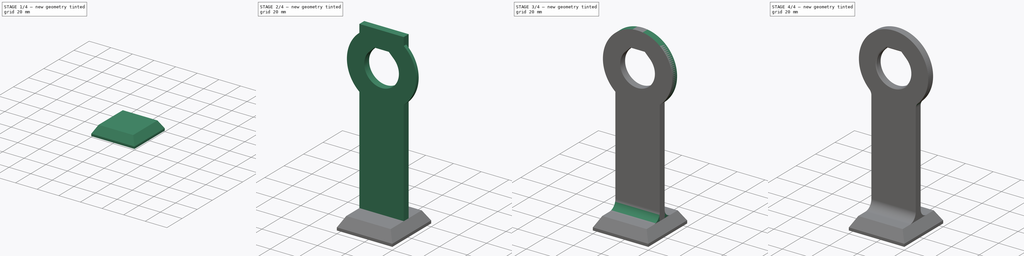
[diagram: build sequence overview — one tinted view per stage of 4, left to right]
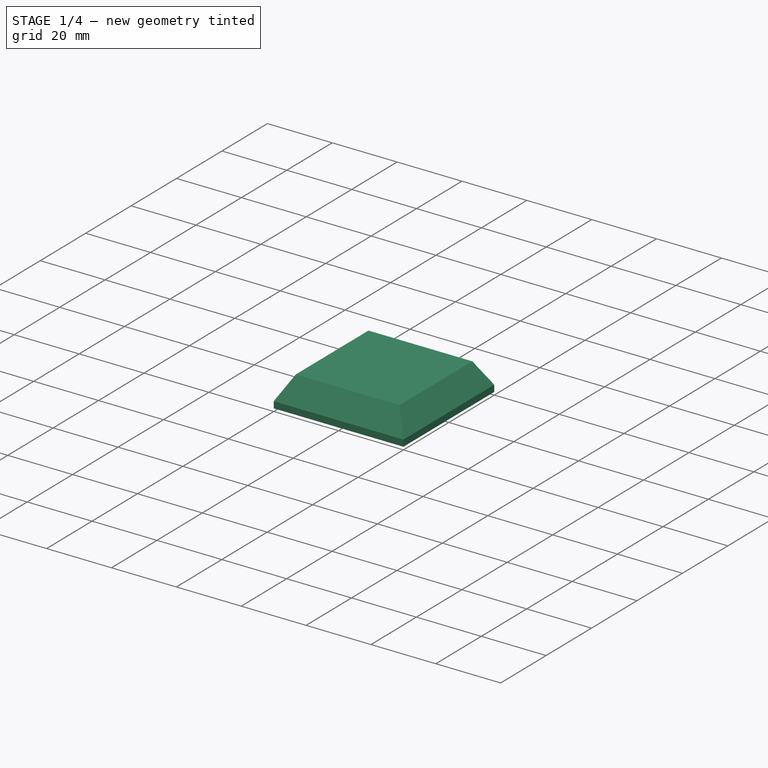
[diagram: stage 1 of 4 — iso view after this stage's code; geometry added in this stage tinted green]
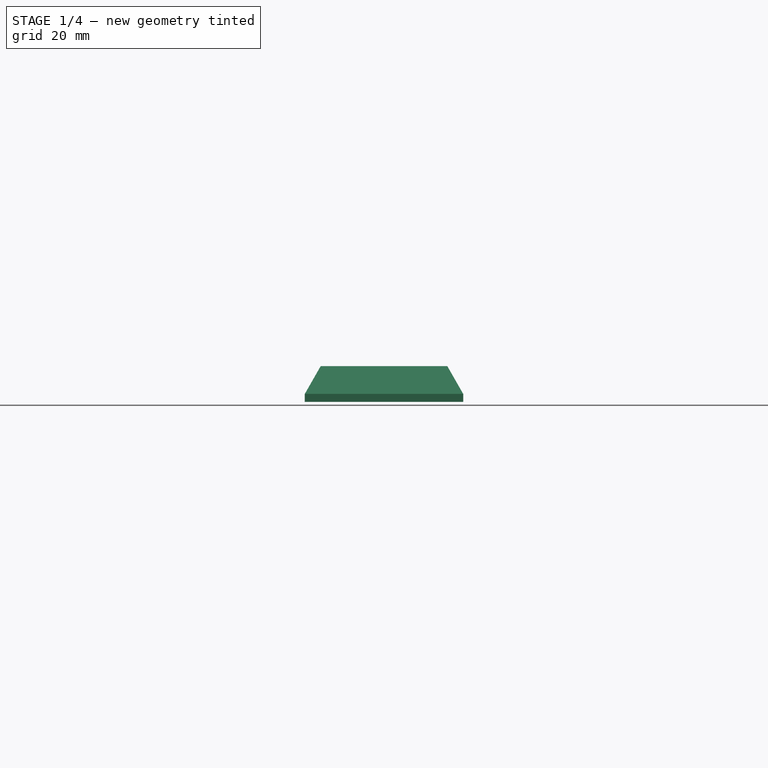
[diagram: stage 1 of 4 — front view after this stage's code; geometry added in this stage tinted green]
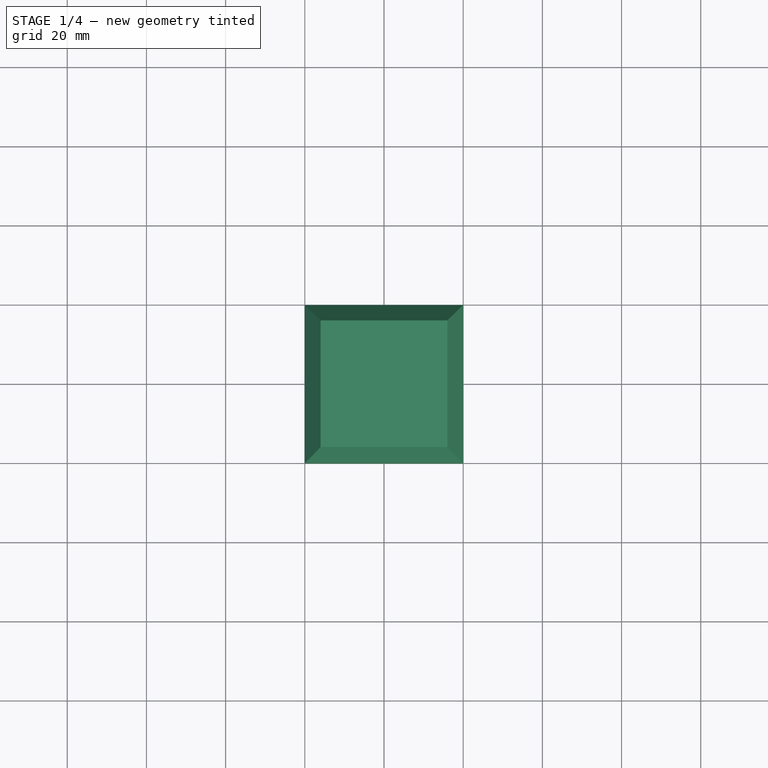
[diagram: stage 1 of 4 — top view after this stage's code; geometry added in this stage tinted green]
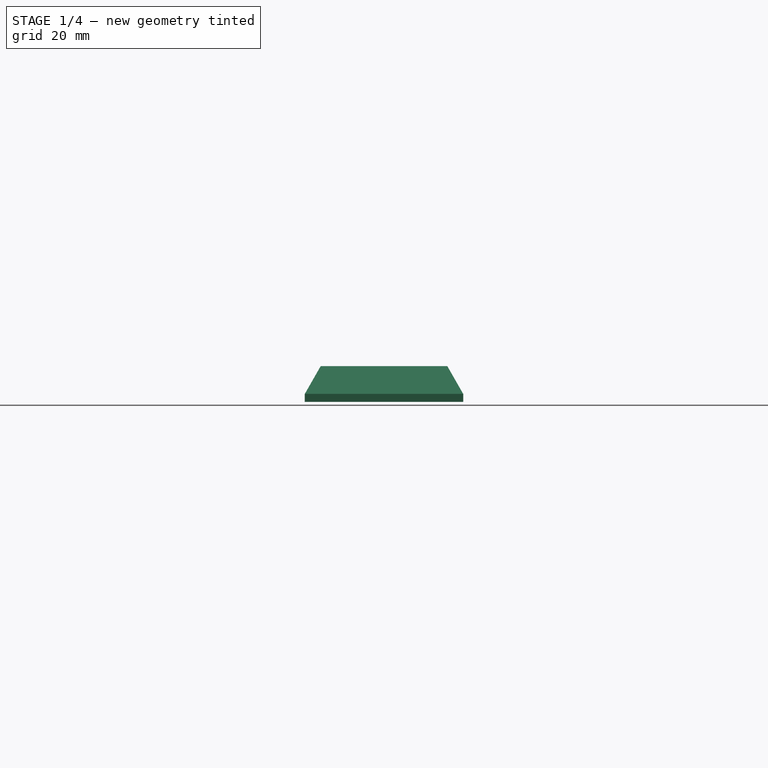
[diagram: stage 1 of 4 — right view after this stage's code; geometry added in this stage tinted green]
FCSTD DOCUMENT  (FreeCAD 2023.131R26244 +5365 (Git))
Label: car phone holder adapter
License: All rights reserved
LicenseURL: http://en.wikipedia.org/wiki/All_rights_reserved
objects: Sketcher::SketchObject×7, PartDesign::Pad×5, PartDesign::Pocket×2, PartDesign::AdditiveLoft×1, Spreadsheet::Sheet×1, PartDesign::Fillet×1, PartDesign::Chamfer×1, PartDesign::Body×1
note: 45 computed .brp shape members not serialized (recipe doc carries the construction recipe); baked Part::Feature solids carry a one-line shape summary decoded from their .brp

FEATURE [Sketcher::SketchObject] Sketch001  label="lock raise sk"
  ArcFitTolerance = 0
  AttachmentOffset = pos=(0,0,7) rot=(0,0,1;0rad)
  AttachmentSupport = -> [XY_Plane001]
  ExternalBSplineMaxDegree = 0
  ExternalBSplineTolerance = 0
  FixShape = 1
  FullyConstrained = true
  InternalTolerance = 1e-06
  InvalidShape = false
  MakeInternals = false
  MapMode = 5
  Placement = pos=(0,0,7) rot=(0,0,1;0rad)
  Support = -> [XY_Plane001]
  TreeRank = 0
  ValidateShape = false
  expr: AttachmentOffset.Base.z = <<dim>>.lock_raise_z
  expr: Constraints[10] = <<dim>>.lock_raise_y
  expr: Constraints[9] = <<dim>>.lock_raise_x
  sketch-geometry (4):
    g0: LineSegment StartX=-16 StartY=16 StartZ=0 EndX=16 EndY=16 EndZ=0
    g1: LineSegment StartX=16 StartY=16 StartZ=0 EndX=16 EndY=-16 EndZ=0
    g2: LineSegment StartX=16 StartY=-16 StartZ=0 EndX=-16 EndY=-16 EndZ=0
    g3: LineSegment StartX=-16 StartY=-16 StartZ=0 EndX=-16 EndY=16 EndZ=0
  constraints (11):
    c: Coincident(g0,g1)
    c: Coincident(g1,g2)
    c: Coincident(g2,g3)
    c: Coincident(g3,g0)
    c: Horizontal(g0)
    c: Horizontal(g2)
    c: Vertical(g1)
    c: Vertical(g3)
    c: Symmetric(g0,g1,g-1)
    c: DistanceX(g0,g0) = 32
    c: DistanceY(g1,g1) = 32
FEATURE [Sketcher::SketchObject] Sketch  label="lock base sk"
  ArcFitTolerance = 0
  AttachmentSupport = -> [XY_Plane001]
  ExternalBSplineMaxDegree = 0
  ExternalBSplineTolerance = 0
  FixShape = 1
  FullyConstrained = true
  InternalTolerance = 1e-06
  InvalidShape = false
  MakeInternals = false
  MapMode = 5
  Support = -> [XY_Plane001]
  TreeRank = 0
  ValidateShape = false
  expr: Constraints[10] = <<dim>>.lock_base_y
  expr: Constraints[9] = <<dim>>.lock_base_x
  sketch-geometry (4):
    g0: LineSegment StartX=-20 StartY=20 StartZ=0 EndX=20 EndY=20 EndZ=0
    g1: LineSegment StartX=20 StartY=20 StartZ=0 EndX=20 EndY=-20 EndZ=0
    g2: LineSegment StartX=20 StartY=-20 StartZ=0 EndX=-20 EndY=-20 EndZ=0
    g3: LineSegment StartX=-20 StartY=-20 StartZ=0 EndX=-20 EndY=20 EndZ=0
  constraints (11):
    c: Coincident(g0,g1)
    c: Coincident(g1,g2)
    c: Coincident(g2,g3)
    c: Coincident(g3,g0)
    c: Horizontal(g0)
    c: Horizontal(g2)
    c: Vertical(g1)
    c: Vertical(g3)
    c: Symmetric(g0,g1,g-1)
    c: DistanceX(g0,g0) = 40
    c: DistanceY(g1,g1) = 40
FEATURE [PartDesign::Pad] Pad  label="lock base"
  AddSubType = 0
  AutoTaperInnerAngle = false
  CheckUpToFaceLimits = true
  ClaimChildren = false
  Direction = (1,1,1)
  Fit = 0
  FitJoin = 0
  FixShape = 1
  InnerFit = 0
  InnerFitJoin = 0
  InvalidShape = false
  Length = 2
  Length2 = 100
  NewSolid = false
  Profile = -> Sketch
  Refine = true
  Reversed = true
  Suppress = false
  TaperInnerAngle = 0
  TaperInnerAngleRev = 0
  TreeRank = 0
  Type = 0
  ValidateShape = false
  _ProfileBasedVersion = 0
  expr: Length = <<dim>>.lock_base_z
FEATURE [PartDesign::AdditiveLoft] AdditiveLoft  label="lock raise"
  AddSubType = 0
  BaseFeature = -> Pad
  ClaimChildren = false
  Closed = true
  Fit = 0
  FitJoin = 0
  FixShape = 1
  InnerFit = 0
  InnerFitJoin = 0
  InvalidShape = false
  NewSolid = false
  Profile = -> Sketch
  Refine = true
  Ruled = true
  Sections = -> [Sketch001]
  SplitProfile = false
  Suppress = false
  TreeRank = 0
  ValidateShape = false
  _ProfileBasedVersion = 0
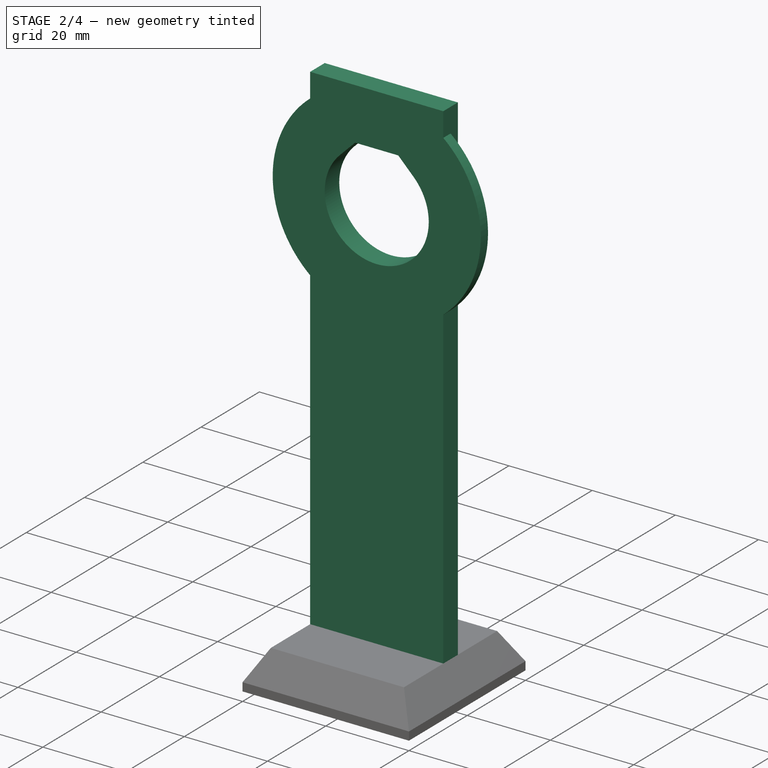
[diagram: stage 2 of 4 — iso view after this stage's code; geometry added in this stage tinted green]
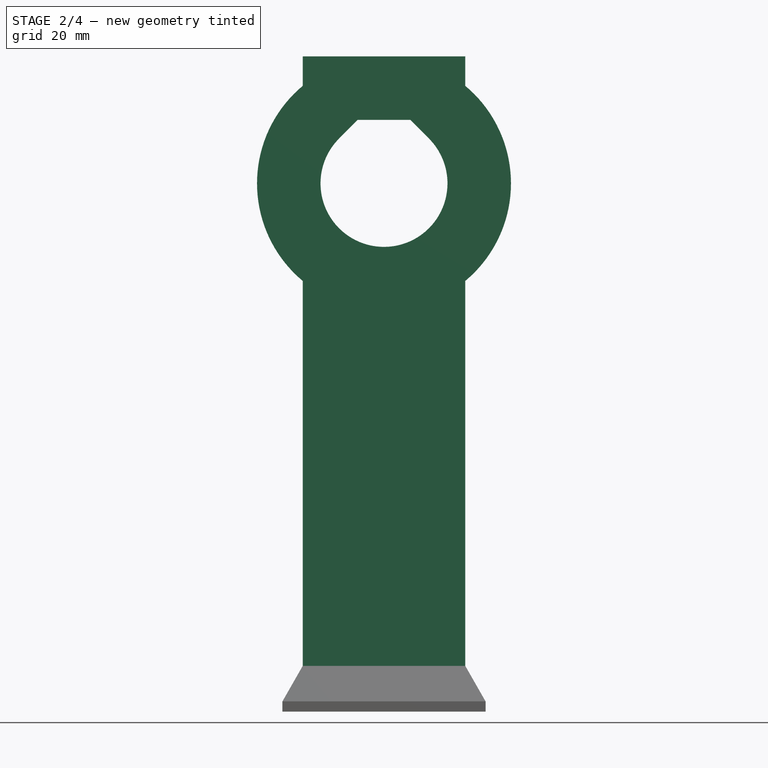
[diagram: stage 2 of 4 — front view after this stage's code; geometry added in this stage tinted green]
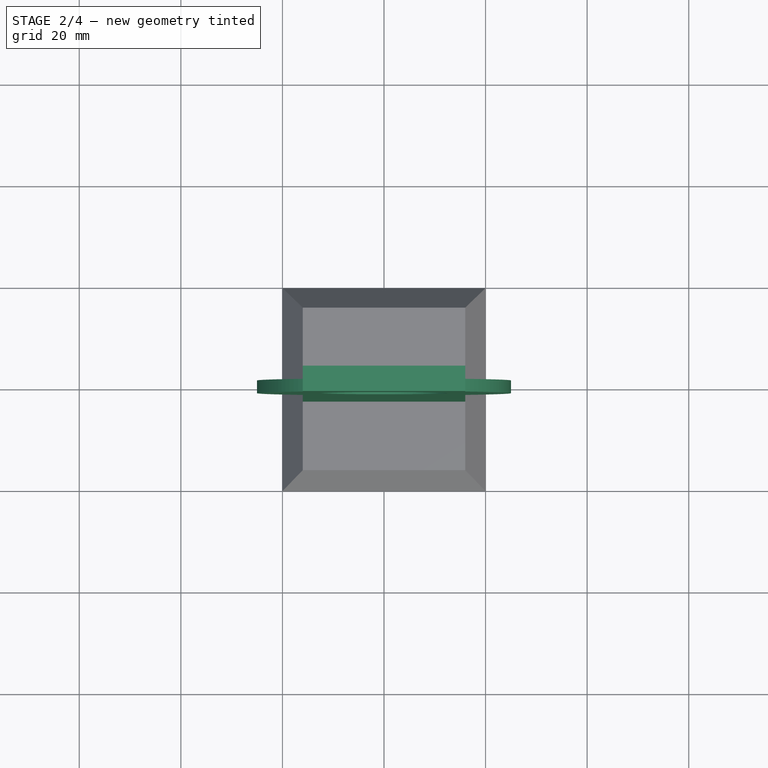
[diagram: stage 2 of 4 — top view after this stage's code; geometry added in this stage tinted green]
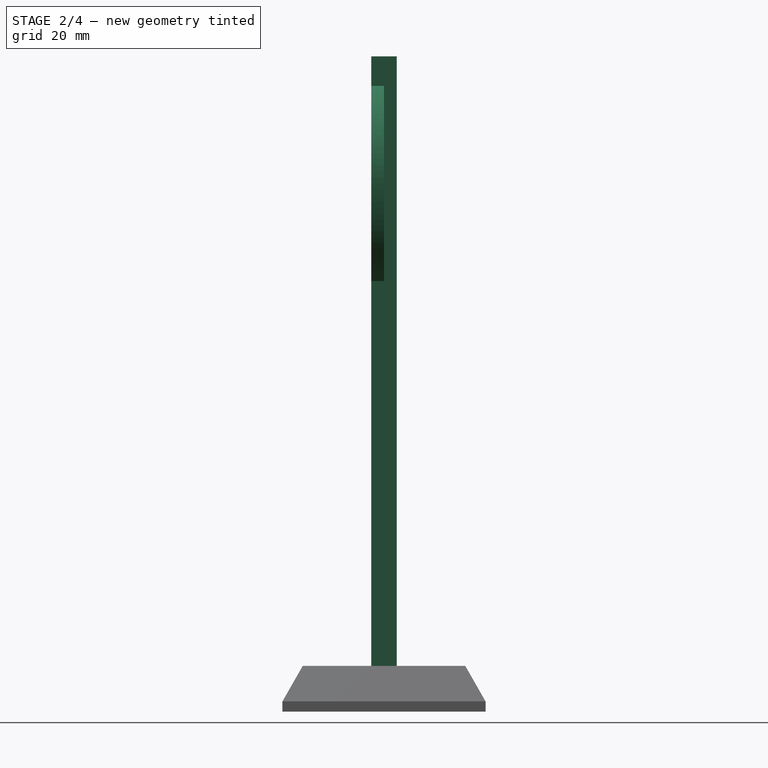
[diagram: stage 2 of 4 — right view after this stage's code; geometry added in this stage tinted green]
FEATURE [Spreadsheet::Sheet] Spreadsheet  label="dim"
  PythonMode = false
  ShowCells = 0
  TreeRank = 0
  cells = A2=LOCK; A3=base X; B3(lock_base_x)=40; A4=base Y; B4(lock_base_y)=40; A5=base Z; B5(lock_base_z)=2; A6=raise X; B6(lock_raise_x)=32; A7=raise Y; B7(lock_raise_y)=32; A8=raise Z; B8(lock_raise_z)=7; A10=PIPE MOUNT; A11=pipe dia; B11(pipe_dia)==pipe_out_d + 0.5; A12=pipe outer dia; B12(pipe_out_d)=20; A13=pipe inner dia; B13(pipe_inner_d)=18.2; A14=pipe dist; B14(pipe_dist)=10; A15=(pipe outside); B15(pipe_outside)==pipe_dist / 2; A16=mount X; B16(pipe_mount_x)==2 * pipe_dia + pipe_dist + 2 * pipe_outside; A17=mount Y; B17(pipe_mount_y)==lock_base_y; A18=mount base Z; B18(pipe_mount_base_z)=4; A19=mount pipe Z; B19(pipe_mount_pipe_z)==pipe_dia / 2 - 1; A21=PIPE SLIDER; A22=thickness; B22(pipe_slider_thickness)=2.5; A23=width; B23(pipe_slider_width)=40; A25=MOUNT SCREW; A26=M6 head circumradius; B26(mount_screw_M6_head_circrad)=11.3; A27=M6 head depth; B27(mount_screw_M6_head_depth)=5; A28=M6 shank diameter; B28(mount_screw_M6_shank_d)=6.7; A29=M5 head circumradius; B29(mount_screw_M5_head_circrad)=8.9; A30=M5 head depth; B30(mount_screw_M5_head_depth)=4; A31=M5 shank diameter; B31(mount_screw_M5_shank_d)=5; A33=BUTTON; A34=inner diameter; B34(button_d_in)=15; A35=outer diameter; B35(button_d_out)=25; A36=height; B36(button_h)=15; A38=PIPE CAP; A39=thickness; B39(pipe_cap_thick)=2; A40=bridge; B40(pipe_cap_bridge)==pipe_dia * 3 / 4; A41=depth; B41(pipe_cap_depth)=10; A42=gap; B42(pipe_cap_gap)=1; A44=IPAD; A45=height; B45(ipad_height)=169; A46=thickness; B46(ipad_thick)=8; A48=IPAD GRAB; A49=width; B49(ipad_grab_width)=20; A50=over; B50(ipad_grab_over)=3; A51=thickness; B51(ipad_grab_thick)=3; A52=distance; B52(ipad_grab_distance)=100; A53=undercut; B53(ipad_grab_undercut)=9
FEATURE [Sketcher::SketchObject] Sketch002
  ArcFitTolerance = 0
  AttachmentSupport = -> [AdditiveLoft]
  ExternalBSplineMaxDegree = 0
  ExternalBSplineTolerance = 0
  ExternalGeometry = -> [AdditiveLoft]
  FixShape = 1
  FullyConstrained = true
  InternalTolerance = 1e-06
  InvalidShape = false
  MakeInternals = false
  MapMode = 5
  Placement = pos=(0,0,7) rot=(0,0,1;0rad)
  Support = -> [AdditiveLoft]
  TreeRank = 0
  ValidateShape = false
  sketch-geometry (4):
    g0: LineSegment StartX=16 StartY=-2.5 StartZ=0 EndX=-16 EndY=-2.5 EndZ=0
    g1: LineSegment StartX=-16 StartY=-2.5 StartZ=0 EndX=-16 EndY=2.5 EndZ=0
    g2: LineSegment StartX=-16 StartY=2.5 StartZ=0 EndX=16 EndY=2.5 EndZ=0
    g3: LineSegment StartX=16 StartY=2.5 StartZ=0 EndX=16 EndY=-2.5 EndZ=0
  constraints (11):
    c: Coincident(g0,g1)
    c: Coincident(g1,g2)
    c: Coincident(g2,g3)
    c: Coincident(g3,g0)
    c: Horizontal(g0)
    c: Horizontal(g2)
    c: Vertical(g1)
    c: Vertical(g-4,g1)
    c: Symmetric(g1,g0,g-1)
    c: DistanceY(g3,g3) = 5
    c: Vertical(g3)
FEATURE [PartDesign::Pad] Pad001  label="vertical"
  AddSubType = 0
  AutoTaperInnerAngle = false
  BaseFeature = -> AdditiveLoft
  CheckUpToFaceLimits = true
  ClaimChildren = false
  Direction = (1,1,1)
  Fit = 0
  FitJoin = 0
  FixShape = 1
  InnerFit = 0
  InnerFitJoin = 0
  InvalidShape = false
  Length = 120
  Length2 = 100
  NewSolid = false
  Profile = -> Sketch002
  Suppress = false
  TaperInnerAngle = 0
  TaperInnerAngleRev = 0
  TreeRank = 0
  Type = 0
  ValidateShape = false
  _ProfileBasedVersion = 0
FEATURE [Sketcher::SketchObject] Sketch003
  ArcFitTolerance = 0
  AttachmentSupport = -> [Pad001]
  ExternalBSplineMaxDegree = 0
  ExternalBSplineTolerance = 0
  ExternalGeometry = -> [Pad001]
  FixShape = 1
  FullyConstrained = true
  InternalTolerance = 1e-06
  InvalidShape = false
  MakeInternals = false
  MapMode = 5
  Placement = pos=(0,-2.5,0) rot=(1,0,0;1.5708rad)
  Support = -> [Pad001]
  TreeRank = 0
  ValidateShape = false
  sketch-geometry (5):
    g0: ArcOfCircle CenterX=0 CenterY=102 CenterZ=0 NormalX=0 NormalY=0 NormalZ=1 AngleXU=0 Radius=12.5 StartAngle=2.35619 EndAngle=7.06858
    g1: LineSegment StartX=-8.83883 StartY=110.839 StartZ=0 EndX=-5.17767 EndY=114.5 EndZ=0
    g2: LineSegment StartX=5.17767 StartY=114.5 StartZ=0 EndX=8.83883 EndY=110.839 EndZ=0
    g3: Circle [constr] CenterX=0 CenterY=102 CenterZ=0 NormalX=0 NormalY=0 NormalZ=1 AngleXU=0 Radius=12.5
    g4: LineSegment StartX=-5.17767 StartY=114.5 StartZ=0 EndX=5.17767 EndY=114.5 EndZ=0
  constraints (12):
    c: PointOnObject(g0,g-2)
    c: Diameter(g0) = 25
    c: Angle(g0) = 4.71239
    c: Tangent(g2,g0) = 1.5708
    c: Coincident(g3,g0)
    c: Equal(g3,g0)
    c: Tangent(g3,g4)
    c: Coincident(g2,g4)
    c: Coincident(g1,g4)
    c: Symmetric(g2,g1,g-2)
    c: Tangent(g1,g0) = 1.5708
    c: DistanceY(g0,g-3) = 25
FEATURE [PartDesign::Pocket] Pocket  label="car adapter hole"
  AddSubType = 1
  AutoTaperInnerAngle = false
  BaseFeature = -> Pad001
  CheckUpToFaceLimits = true
  ClaimChildren = false
  Fit = 0
  FitJoin = 0
  FixShape = 1
  InnerFit = 0
  InnerFitJoin = 0
  InvalidShape = false
  Length = 5
  Length2 = 100
  NewSolid = false
  Profile = -> Sketch003
  Suppress = false
  TaperInnerAngle = 0
  TaperInnerAngleRev = 0
  TreeRank = 0
  Type = 1
  ValidateShape = false
  _ProfileBasedVersion = 0
  _Version = 0
FEATURE [Sketcher::SketchObject] Sketch007
  ArcFitTolerance = 1e-06
  AttachmentSupport = -> [XZ_Plane001]
  ExternalBSplineMaxDegree = 5
  ExternalBSplineTolerance = 0.0001
  ExternalGeometry = -> [Sketch003,Pocket]
  FixShape = 1
  FullyConstrained = true
  InternalTolerance = 1e-06
  InvalidShape = false
  MakeInternals = false
  MapMode = 5
  Placement = pos=(0,0,0) rot=(1,0,0;1.5708rad)
  Support = -> [XZ_Plane001]
  TreeRank = 10
  ValidateShape = false
  sketch-geometry (2):
    g0: Circle CenterX=0 CenterY=102 CenterZ=0 NormalX=0 NormalY=0 NormalZ=1 AngleXU=0 Radius=25
    g1: Circle CenterX=0 CenterY=102 CenterZ=0 NormalX=0 NormalY=0 NormalZ=1 AngleXU=0 Radius=16
  constraints (4):
    c: Coincident(g0,g-3)
    c: Tangent(g0,g-5)
    c: Coincident(g1,g0)
    c: Tangent(g1,g-4)
FEATURE [PartDesign::Pad] Pad005
  AddSubType = 0
  AlongSketchNormal = false
  AutoTaperInnerAngle = true
  BaseFeature = -> Pocket
  CheckUpToFaceLimits = true
  ClaimChildren = false
  Direction = (0,-1,-2e-16)
  Fit = 0
  FitJoin = 0
  FixShape = 1
  InnerFit = 0
  InnerFitJoin = 0
  InvalidShape = false
  Length = 10
  Length2 = 100
  Linearize = true
  NewSolid = false
  Profile = -> Sketch007
  Refine = true
  Suppress = false
  TaperInnerAngle = 0
  TaperInnerAngleRev = 0
  TreeRank = 11
  Type = 3
  UpToFace = -> Pocket [Face15]
  ValidateShape = false
  _ProfileBasedVersion = 1
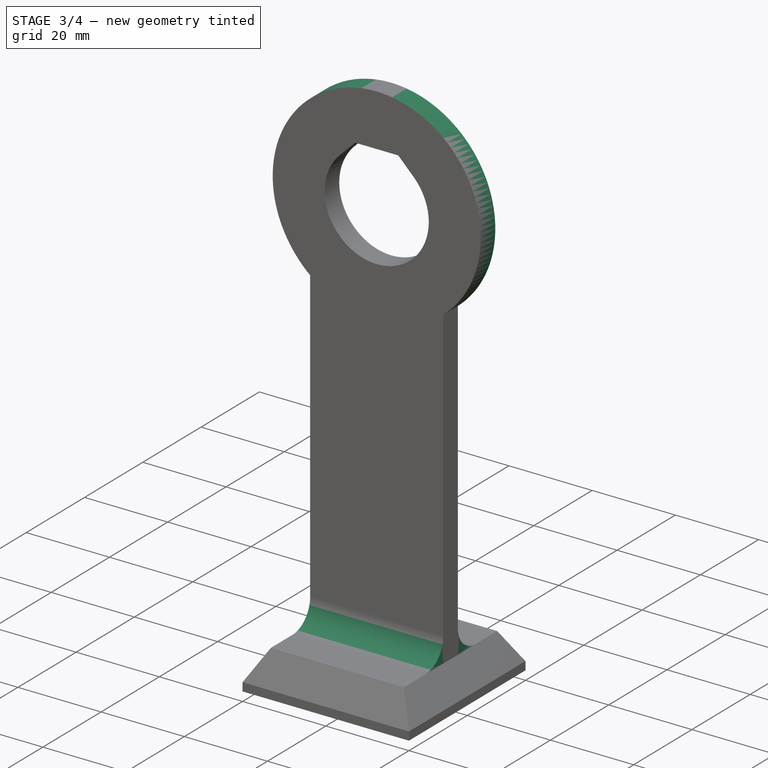
[diagram: stage 3 of 4 — iso view after this stage's code; geometry added in this stage tinted green]
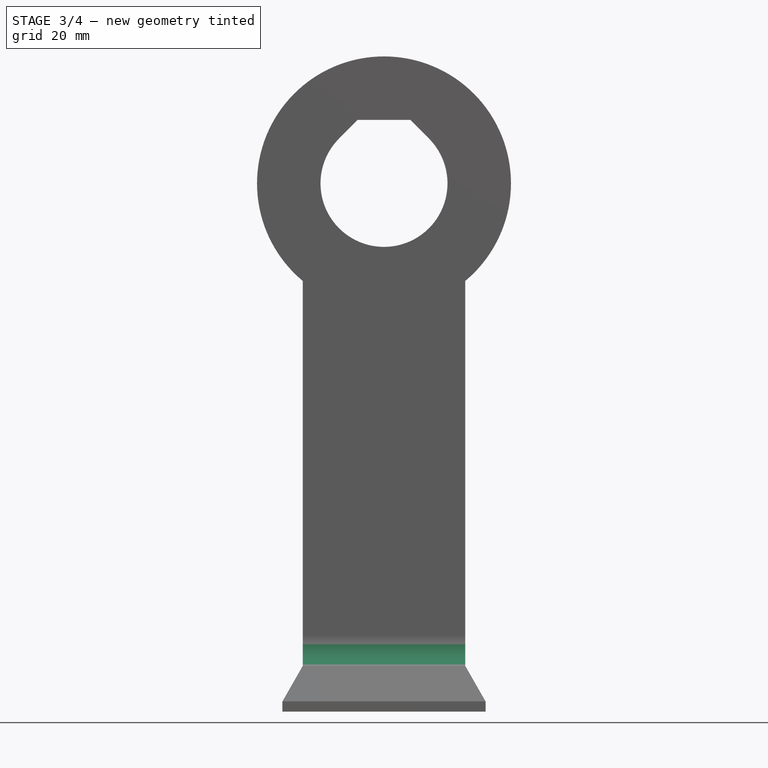
[diagram: stage 3 of 4 — front view after this stage's code; geometry added in this stage tinted green]
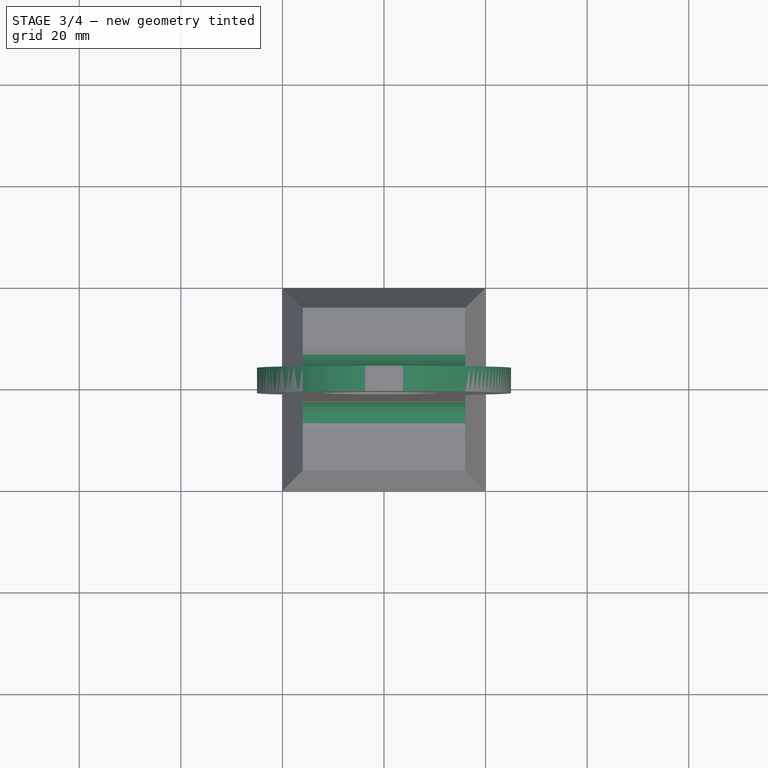
[diagram: stage 3 of 4 — top view after this stage's code; geometry added in this stage tinted green]
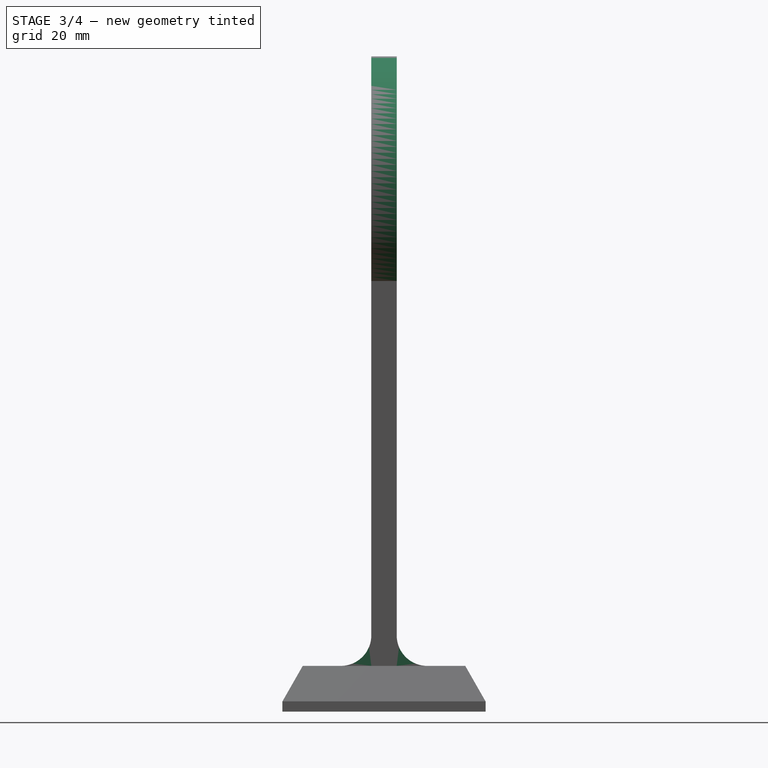
[diagram: stage 3 of 4 — right view after this stage's code; geometry added in this stage tinted green]
FEATURE [PartDesign::Pad] Pad006
  AddSubType = 0
  AlongSketchNormal = false
  AutoTaperInnerAngle = true
  BaseFeature = -> Pad005
  CheckUpToFaceLimits = true
  ClaimChildren = false
  Direction = (0,-1,-2e-16)
  Fit = 0
  FitJoin = 0
  FixShape = 1
  InnerFit = 0
  InnerFitJoin = 0
  InvalidShape = false
  Length = 10
  Length2 = 100
  Linearize = true
  NewSolid = false
  Profile = -> Sketch007
  Refine = true
  Suppress = false
  TaperInnerAngle = 0
  TaperInnerAngleRev = 0
  TreeRank = 12
  Type = 3
  UpToFace = -> Pad005 [Face14]
  ValidateShape = false
  _ProfileBasedVersion = 1
FEATURE [Sketcher::SketchObject] Sketch008
  ArcFitTolerance = 1e-06
  AttachmentSupport = -> [XZ_Plane001]
  ExternalBSplineMaxDegree = 5
  ExternalBSplineTolerance = 0.0001
  ExternalGeometry = -> [Sketch007,Pad006]
  FixShape = 1
  FullyConstrained = true
  InternalTolerance = 1e-06
  InvalidShape = false
  MakeInternals = false
  MapMode = 5
  Placement = pos=(0,0,0) rot=(1,0,0;1.5708rad)
  Support = -> [XZ_Plane001]
  TreeRank = 13
  ValidateShape = false
  sketch-geometry (4):
    g0: ArcOfCircle CenterX=0 CenterY=102 CenterZ=0 NormalX=0 NormalY=0 NormalZ=1 AngleXU=0 Radius=25 StartAngle=0.876298 EndAngle=2.26529
    g1: ArcOfCircle CenterX=0 CenterY=102 CenterZ=0 NormalX=0 NormalY=0 NormalZ=1 AngleXU=0 Radius=35 StartAngle=0.876298 EndAngle=2.26529
    g2: LineSegment StartX=-16 StartY=121.209 StartZ=0 EndX=-22.4 EndY=128.893 EndZ=0
    g3: LineSegment StartX=16 StartY=121.209 StartZ=0 EndX=22.4 EndY=128.893 EndZ=0
  constraints (11):
    c: Coincident(g0,g-3)
    c: Coincident(g0,g-4)
    c: Coincident(g0,g-5)
    c: Coincident(g1,g0)
    c: Coincident(g2,g0)
    c: Coincident(g2,g1)
    c: Coincident(g3,g0)
    c: Coincident(g3,g1)
    c: Perpendicular(g1,g3)
    c: Perpendicular(g1,g2)
    c: Distance(g3) = 10
FEATURE [PartDesign::Pocket] Pocket001
  AddSubType = 1
  AutoTaperInnerAngle = true
  BaseFeature = -> Pad006
  CheckUpToFaceLimits = true
  ClaimChildren = false
  Fit = 0
  FitJoin = 0
  FixShape = 1
  InnerFit = 0
  InnerFitJoin = 0
  InvalidShape = false
  Length = 5
  Length2 = 100
  Linearize = true
  Midplane = true
  NewSolid = false
  Profile = -> Sketch008
  Refine = true
  Suppress = false
  TaperInnerAngle = 0
  TaperInnerAngleRev = 0
  TreeRank = 14
  Type = 1
  ValidateShape = false
  _ProfileBasedVersion = 1
  _Version = 1
FEATURE [Sketcher::SketchObject] Sketch004
  ArcFitTolerance = 0
  AttachmentSupport = -> [Pocket001]
  ExternalBSplineMaxDegree = 0
  ExternalBSplineTolerance = 0
  ExternalGeometry = -> [Pocket001]
  FixShape = 1
  FullyConstrained = true
  InternalTolerance = 1e-06
  InvalidShape = false
  MakeInternals = false
  MapMode = 5
  Placement = pos=(-16,0,0) rot=(0.57735,-0.57735,-0.57735;2.0944rad)
  Support = -> [Pocket001]
  TreeRank = 0
  ValidateShape = false
  sketch-geometry (4):
    g0: ArcOfCircle CenterX=8.5 CenterY=13 CenterZ=0 NormalX=0 NormalY=0 NormalZ=1 AngleXU=0 Radius=6 StartAngle=3.14159 EndAngle=4.71239
    g1: ArcOfCircle CenterX=-8.5 CenterY=13 CenterZ=0 NormalX=0 NormalY=0 NormalZ=1 AngleXU=0 Radius=6 StartAngle=4.71239 EndAngle=6.28319
    g2: LineSegment StartX=2.5 StartY=13 StartZ=0 EndX=-2.5 EndY=13 EndZ=0
    g3: LineSegment StartX=-8.5 StartY=7 StartZ=0 EndX=8.5 EndY=7 EndZ=0
  constraints (14):
    c: PointOnObject(g0,g-3)
    c: Vertical(g0,g0)
    c: Horizontal(g0,g0)
    c: PointOnObject(g1,g-5)
    c: PointOnObject(g1,g-6)
    c: Vertical(g1,g1)
    c: Horizontal(g1,g1)
    c: Equal(g1,g0)
    c: Coincident(g3,g1)
    c: Coincident(g3,g0)
    c: Radius(g0) = 6
    c: Coincident(g1,g2)
    c: Coincident(g0,g2)
    c: PointOnObject(g0,g-6)
FEATURE [PartDesign::Pad] Pad002
  AddSubType = 0
  AutoTaperInnerAngle = false
  BaseFeature = -> Pocket001
  CheckUpToFaceLimits = true
  ClaimChildren = false
  Direction = (-1,0,0)
  Fit = 0
  FitJoin = 0
  FixShape = 1
  InnerFit = 0
  InnerFitJoin = 0
  InvalidShape = false
  Length = 10
  Length2 = 100
  NewSolid = false
  Profile = -> Sketch004
  Reversed = true
  Suppress = false
  TaperInnerAngle = 0
  TaperInnerAngleRev = 0
  TreeRank = 0
  Type = 2
  ValidateShape = false
  _ProfileBasedVersion = 0
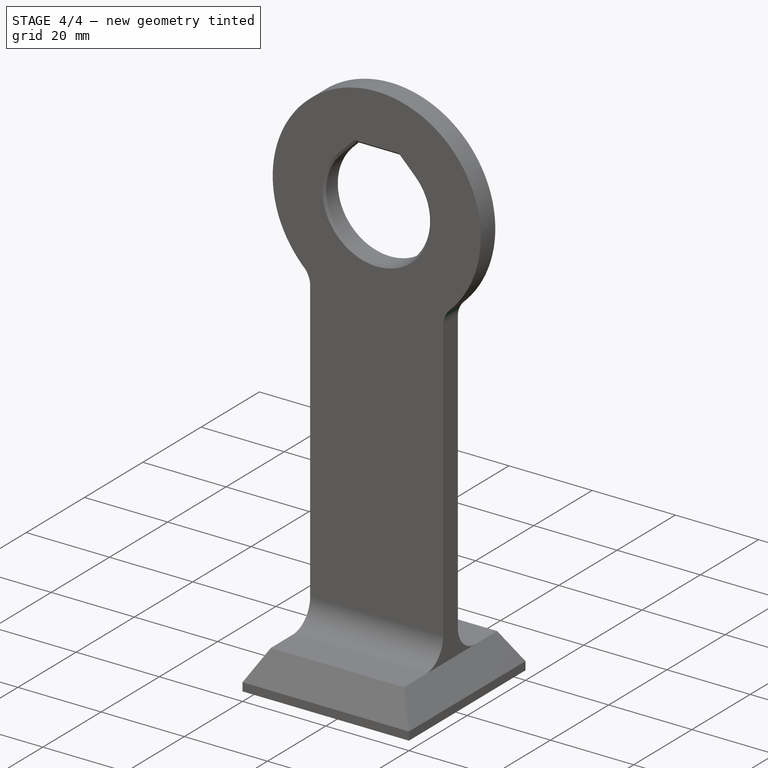
[diagram: stage 4 of 4 — iso view after this stage's code; geometry added in this stage tinted green]
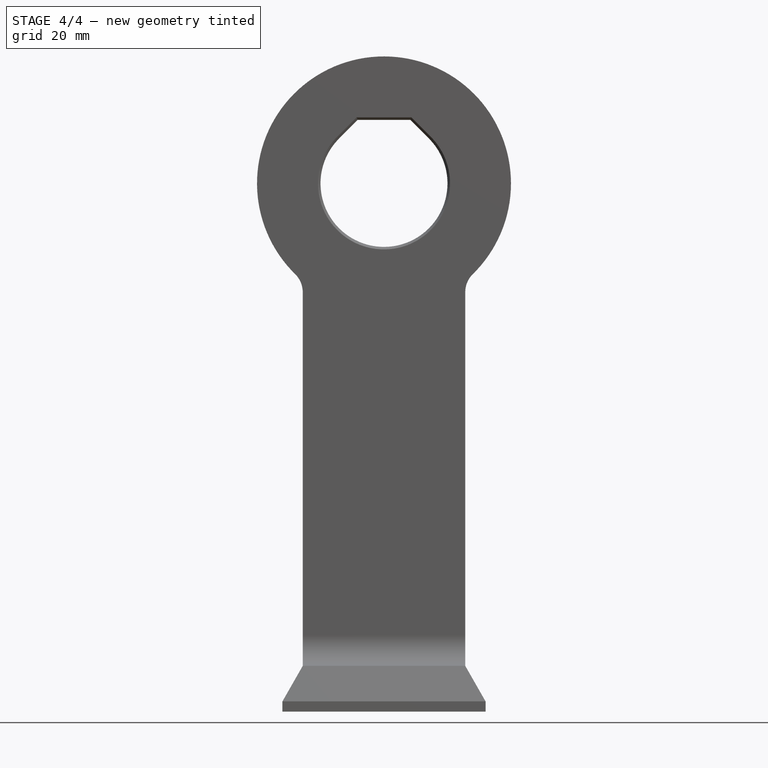
[diagram: stage 4 of 4 — front view after this stage's code; geometry added in this stage tinted green]
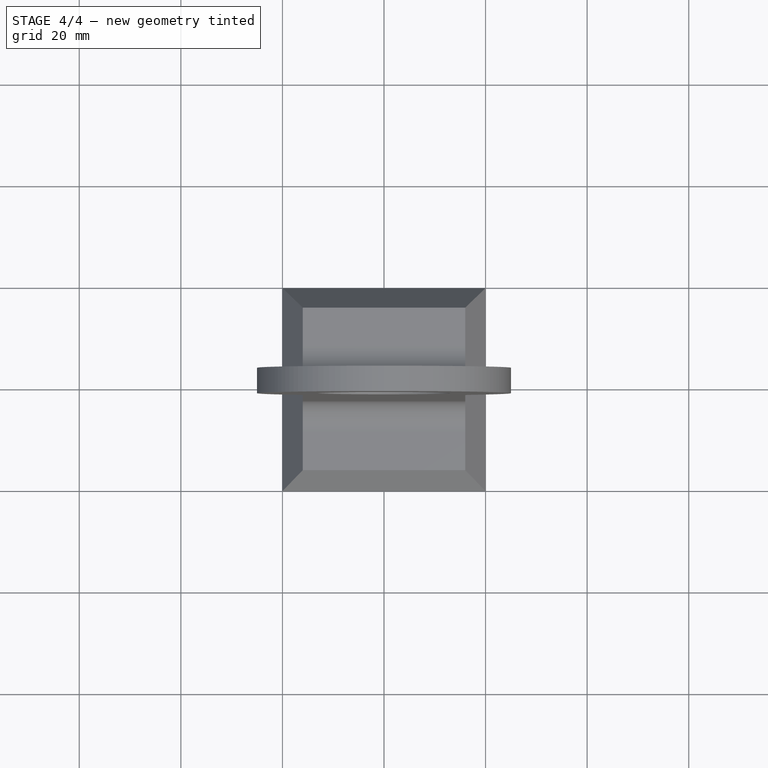
[diagram: stage 4 of 4 — top view after this stage's code; geometry added in this stage tinted green]
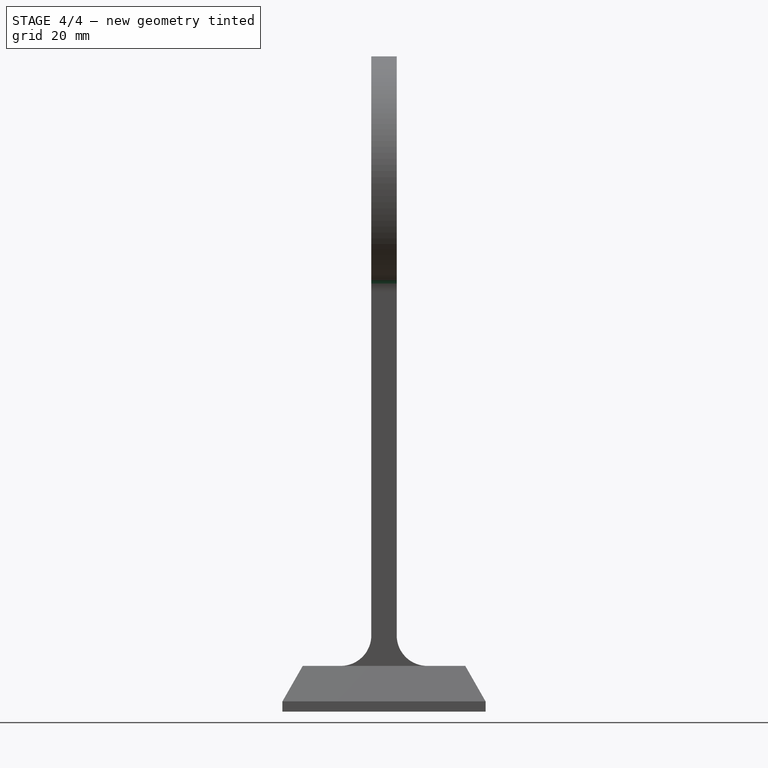
[diagram: stage 4 of 4 — right view after this stage's code; geometry added in this stage tinted green]
FEATURE [PartDesign::Fillet] Fillet
  AddSubType = 0
  Base = -> Pad002 [Edge44,Edge47]
  BaseFeature = -> Pad002
  FixShape = 1
  InvalidShape = false
  NewSolid = false
  Radius = 5
  Refine = true
  SupportTransform = false
  Suppress = false
  TreeRank = 15
  ValidateShape = false
FEATURE [PartDesign::Chamfer] Chamfer001
  AddSubType = 0
  Angle = 45
  Base = -> Fillet [Edge31,Edge16,Edge15,Edge34]
  BaseFeature = -> Fillet
  ChamferType = 0
  FixShape = 1
  FlipDirection = false
  InvalidShape = false
  NewSolid = false
  Size = 0.5
  Size2 = 1
  SupportTransform = false
  Suppress = false
  TreeRank = 0
  ValidateShape = false
FEATURE [PartDesign::Body] Body  label="lock"
  AutoGroupSolids = false
  ClaimAllChildren = false
  ExportMode = 0
  FixShape = 1
  Group = -> [Sketch,Pad,Sketch001,AdditiveLoft,Sketch002,Pad001,Sketch003,Pocket,Sketch007,Pad005,Pad006,Sketch008,Pocket001,Sketch004,Pad002,Fillet,Chamfer001]
  InvalidShape = false
  Origin = -> Origin001
  Placement = pos=(0,0,-7) rot=(0,0,1;0rad)
  Tip = -> Chamfer001
  TreeRank = 0
  ValidateShape = false
  _ExportChildren = -> [Pad,AdditiveLoft,Pad001,Pocket,Pad005,Pad006,Pocket001,Pad002,Fillet,Chamfer001]
  _GroupVersion = 1
  expr: Placement.Base.z = -<<dim>>.lock_raise_z
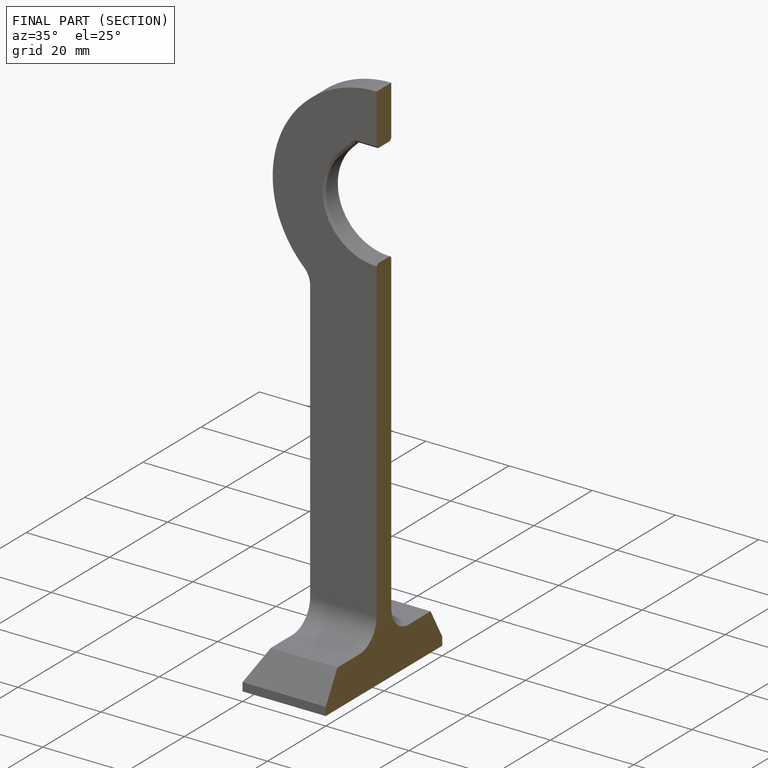
[diagram: finished part — half-section view (interior)]
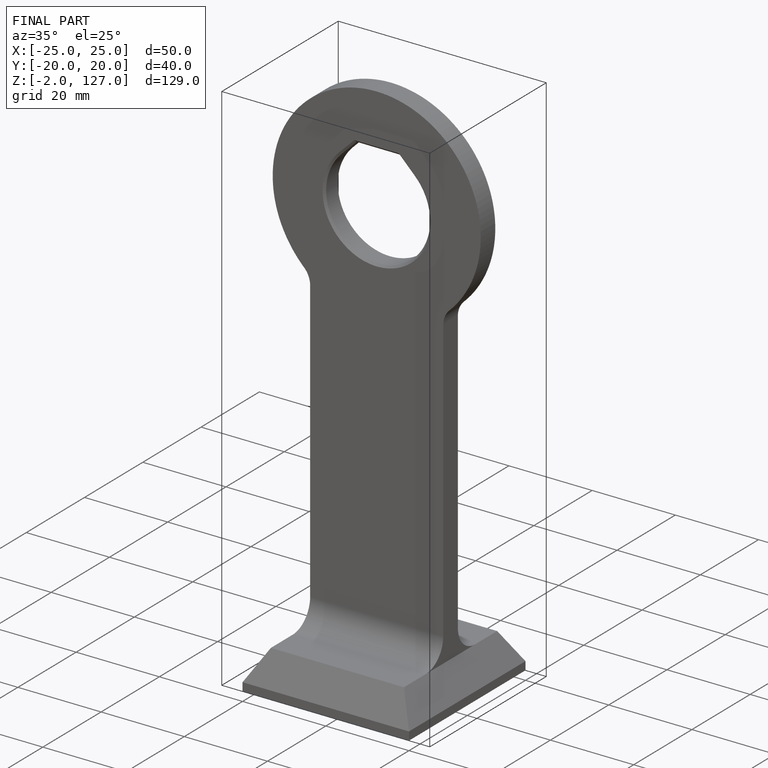
[diagram: finished part — iso view with bounding-box wireframe]
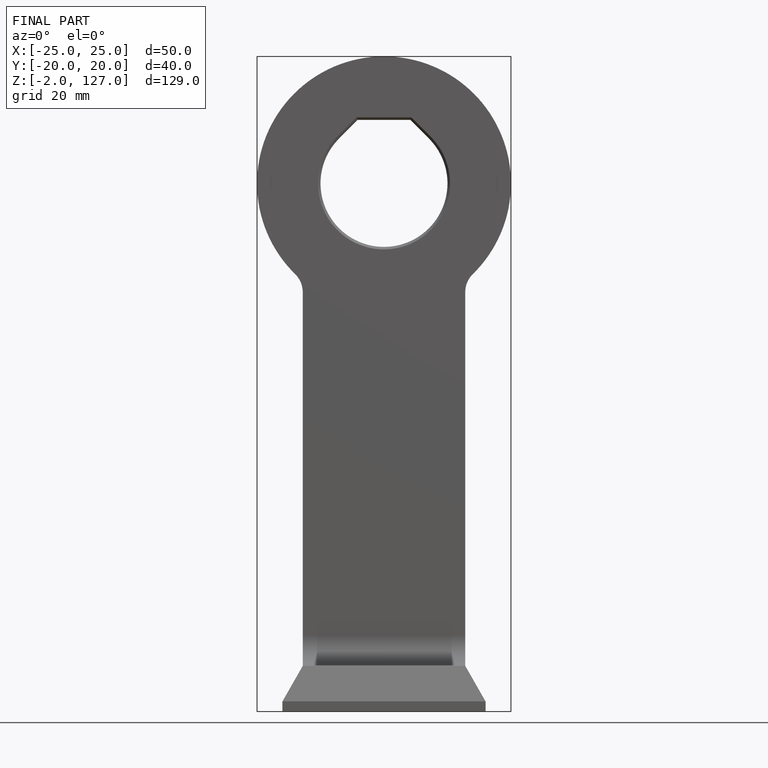
[diagram: finished part — front view with bounding-box wireframe]
